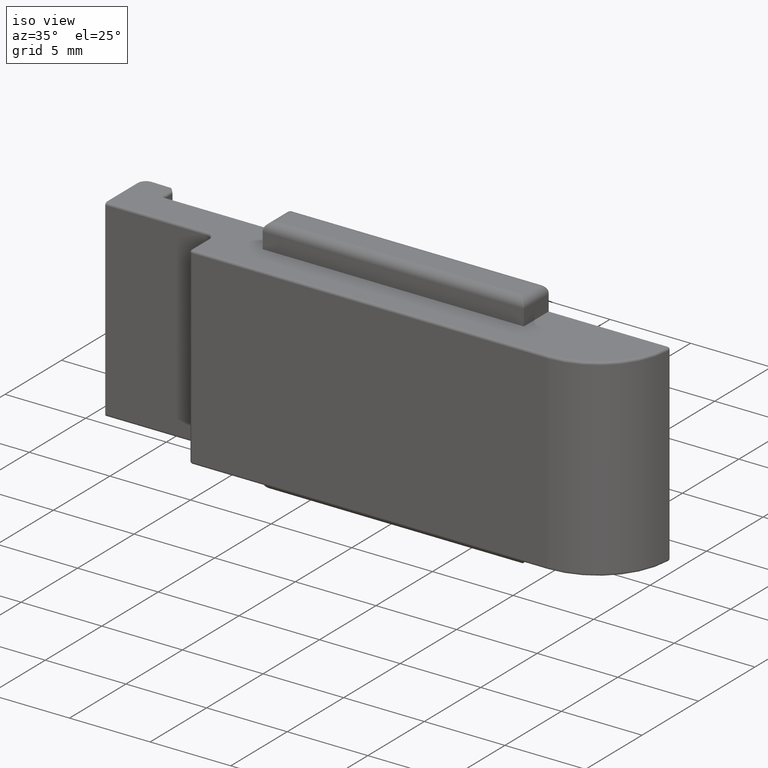
[diagram: clean part render]
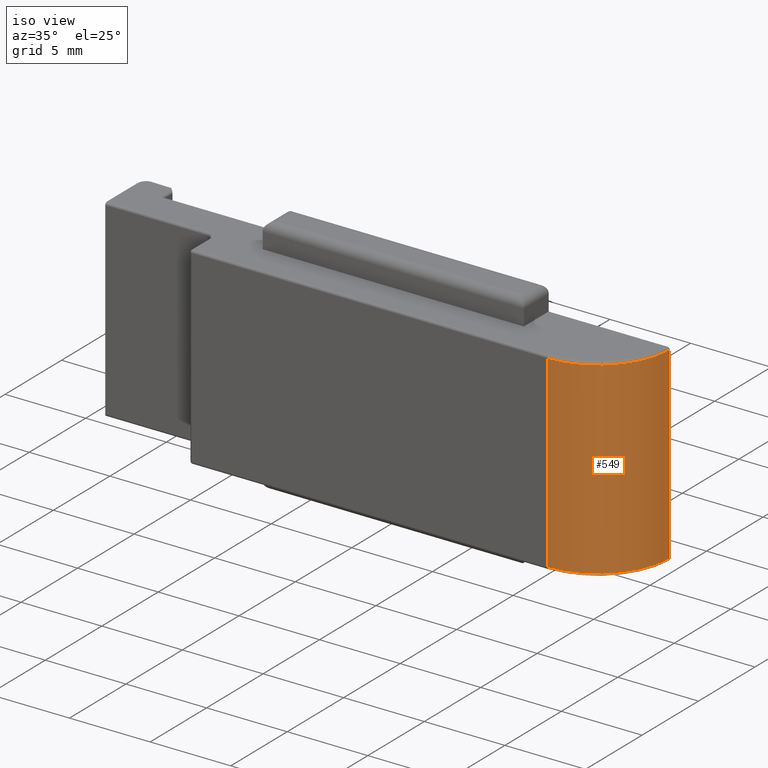
[diagram: same view with one face highlighted and labeled with its STEP entity id]
A machine part, iso view. The second image highlights one B-rep face of the part: STEP entity #549.
In plain terms, the highlighted cylindrical surface (partial cylindrical patch) has radius 4.5 mm, axis along (0, -0, -1).
Its self-contained STEP definition (entity closure, byte-faithful):
#13 = DIRECTION ( 'NONE',  ( 0.000000000000000000, -6.162975822039132834E-33, -1.000000000000000000 ) ) ;
#55 = VECTOR ( 'NONE', #2120, 1000.000000000000000 ) ;
#73 = CARTESIAN_POINT ( 'NONE',  ( 22.20000000000005258, -5.100000000000000533, 0.1499999999999973577 ) ) ;
#86 = ORIENTED_EDGE ( 'NONE', *, *, #604, .F. ) ;
#167 = LINE ( 'NONE', #1724, #227 ) ;
#227 = VECTOR ( 'NONE', #437, 1000.000000000000000 ) ;
#251 = CIRCLE ( 'NONE', #1675, 4.500000000000014211 ) ;
#264 = CARTESIAN_POINT ( 'NONE',  ( 26.69732381778301189, -0.7551724137931024039, 0.1499999999999973577 ) ) ;
#310 = DIRECTION ( 'NONE',  ( -1.000000000000000000, 0.000000000000000000, 0.000000000000000000 ) ) ;
#361 = CARTESIAN_POINT ( 'NONE',  ( 22.20000000000005258, -5.100000000000000533, 12.00000000000001066 ) ) ;
#382 = AXIS2_PLACEMENT_3D ( 'NONE', #975, #815, #310 ) ;
#437 = DIRECTION ( 'NONE',  ( -0.000000000000000000, 6.162975822039132834E-33, 1.000000000000000000 ) ) ;
#460 = CARTESIAN_POINT ( 'NONE',  ( 22.20000000000005258, -5.100000000000000533, 11.85000000000000675 ) ) ;
#549 = ADVANCED_FACE ( 'NONE', ( #1196 ), #1275, .T. ) ;
#604 = EDGE_CURVE ( 'NONE', #1189, #1727, #1094, .T. ) ;
#611 = VERTEX_POINT ( 'NONE', #264 ) ;
#622 = EDGE_CURVE ( 'NONE', #788, #1727, #251, .T. ) ;
#735 = ORIENTED_EDGE ( 'NONE', *, *, #844, .T. ) ;
#754 = DIRECTION ( 'NONE',  ( 0.000000000000000000, -6.162975822039132834E-33, -1.000000000000000000 ) ) ;
#788 = VERTEX_POINT ( 'NONE', #1301 ) ;
#815 = DIRECTION ( 'NONE',  ( -0.000000000000000000, 6.162975822039132834E-33, 1.000000000000000000 ) ) ;
#844 = EDGE_CURVE ( 'NONE', #1189, #611, #1703, .T. ) ;
#886 = DIRECTION ( 'NONE',  ( -1.000000000000000000, 0.000000000000000000, 0.000000000000000000 ) ) ;
#949 = AXIS2_PLACEMENT_3D ( 'NONE', #1364, #13, #886 ) ;
#975 = CARTESIAN_POINT ( 'NONE',  ( 22.20000000000005613, -0.5999999999999963141, 0.1499999999999973577 ) ) ;
#980 = EDGE_LOOP ( 'NONE', ( #2200, #1584, #86, #735 ) ) ;
#1094 = LINE ( 'NONE', #361, #55 ) ;
#1162 = EDGE_CURVE ( 'NONE', #611, #788, #167, .T. ) ;
#1189 = VERTEX_POINT ( 'NONE', #73 ) ;
#1196 = FACE_OUTER_BOUND ( 'NONE', #980, .T. ) ;
#1275 = CYLINDRICAL_SURFACE ( 'NONE', #949, 4.500000000000014211 ) ;
#1301 = CARTESIAN_POINT ( 'NONE',  ( 26.69732381778301189, -0.7551724137931024039, 11.85000000000000675 ) ) ;
#1364 = CARTESIAN_POINT ( 'NONE',  ( 22.20000000000005613, -0.5999999999999963141, 12.00000000000001066 ) ) ;
#1584 = ORIENTED_EDGE ( 'NONE', *, *, #622, .T. ) ;
#1600 = DIRECTION ( 'NONE',  ( -1.000000000000000000, 0.000000000000000000, 0.000000000000000000 ) ) ;
#1675 = AXIS2_PLACEMENT_3D ( 'NONE', #1803, #754, #1600 ) ;
#1703 = CIRCLE ( 'NONE', #382, 4.500000000000014211 ) ;
#1724 = CARTESIAN_POINT ( 'NONE',  ( 26.69732381778301189, -0.7551724137931024039, 12.00000000000001066 ) ) ;
#1727 = VERTEX_POINT ( 'NONE', #460 ) ;
#1803 = CARTESIAN_POINT ( 'NONE',  ( 22.20000000000005613, -0.5999999999999963141, 11.85000000000000675 ) ) ;
#2120 = DIRECTION ( 'NONE',  ( -0.000000000000000000, 6.162975822039132834E-33, 1.000000000000000000 ) ) ;
#2200 = ORIENTED_EDGE ( 'NONE', *, *, #1162, .T. ) ;